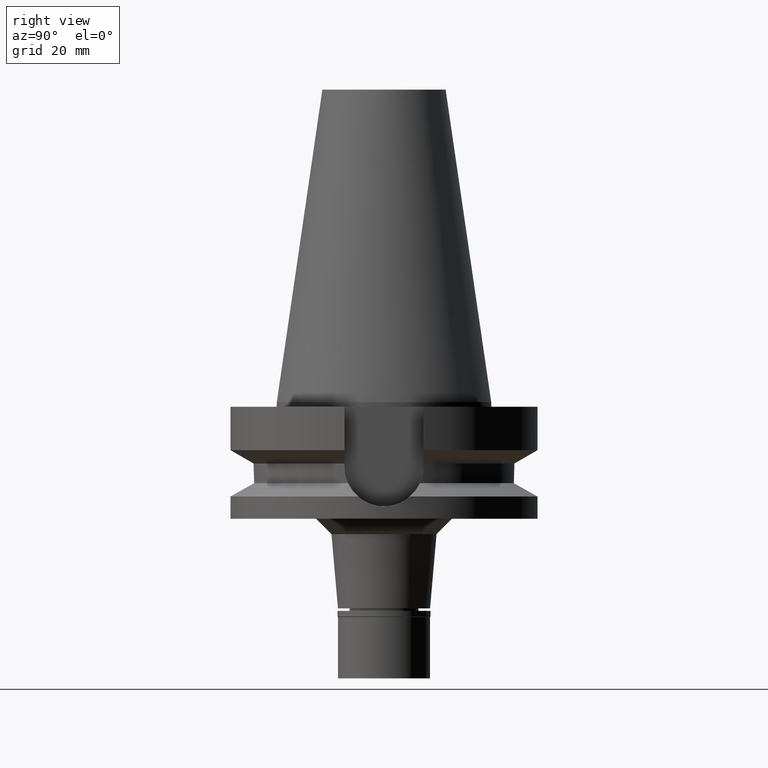
[diagram: clean part render]
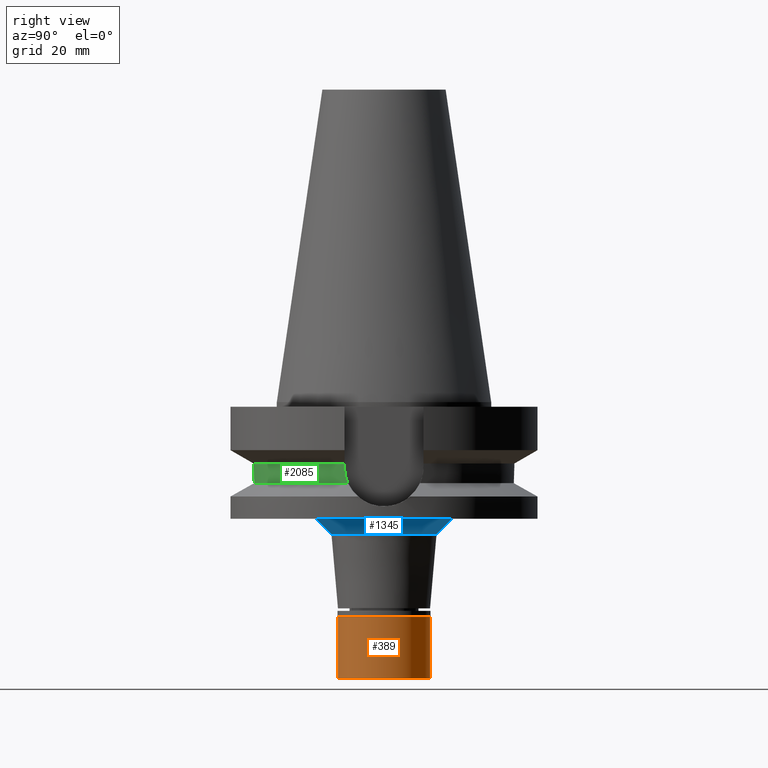
[diagram: same view with three faces highlighted in distinct colors, each labeled with its STEP entity id]
A machine part, right view with three faces highlighted in distinct colors.
Their STEP definitions:

[orange] entity #389 — the highlighted cylindrical surface (partial cylindrical patch) has radius 15 mm, axis along (0, 0, -1).
#73 = EDGE_CURVE ( 'NONE', #1569, #3101, #2287, .T. ) ;
#389 = ADVANCED_FACE ( 'NONE', ( #2528 ), #2089, .T. ) ;
#515 = LINE ( 'NONE', #2743, #1681 ) ;
#583 = CARTESIAN_POINT ( 'NONE',  ( 0.0000000000000000000, 0.0000000000000000000, -22.00000000000000000 ) ) ;
#639 = ORIENTED_EDGE ( 'NONE', *, *, #2424, .T. ) ;
#715 = EDGE_LOOP ( 'NONE', ( #2642, #1300, #639, #1314 ) ) ;
#833 = CARTESIAN_POINT ( 'NONE',  ( 0.0000000000000000000, 15.00000000000000000, -22.00000000000000000 ) ) ;
#1035 = VERTEX_POINT ( 'NONE', #1469 ) ;
#1136 = CARTESIAN_POINT ( 'NONE',  ( 0.0000000000000000000, 15.00000000000000000, -2.000000000000000000 ) ) ;
#1173 = VECTOR ( 'NONE', #2096, 1000.000000000000000 ) ;
#1300 = ORIENTED_EDGE ( 'NONE', *, *, #1790, .T. ) ;
#1314 = ORIENTED_EDGE ( 'NONE', *, *, #73, .F. ) ;
#1365 = AXIS2_PLACEMENT_3D ( 'NONE', #2281, #3049, #3067 ) ;
#1430 = CIRCLE ( 'NONE', #2763, 15.00000000000000000 ) ;
#1469 = CARTESIAN_POINT ( 'NONE',  ( 0.0000000000000000000, -15.00000000000000000, -2.000000000000000000 ) ) ;
#1569 = VERTEX_POINT ( 'NONE', #1136 ) ;
#1665 = CARTESIAN_POINT ( 'NONE',  ( 0.0000000000000000000, 0.0000000000000000000, -2.000000000000000000 ) ) ;
#1681 = VECTOR ( 'NONE', #2765, 1000.000000000000000 ) ;
#1684 = AXIS2_PLACEMENT_3D ( 'NONE', #1665, #3136, #2920 ) ;
#1790 = EDGE_CURVE ( 'NONE', #1035, #2447, #515, .T. ) ;
#2089 = CYLINDRICAL_SURFACE ( 'NONE', #1365, 15.00000000000000000 ) ;
#2096 = DIRECTION ( 'NONE',  ( 0.0000000000000000000, 0.0000000000000000000, -1.000000000000000000 ) ) ;
#2106 = DIRECTION ( 'NONE',  ( 0.0000000000000000000, -1.000000000000000000, 0.0000000000000000000 ) ) ;
#2253 = CIRCLE ( 'NONE', #1684, 15.00000000000000000 ) ;
#2281 = CARTESIAN_POINT ( 'NONE',  ( 0.0000000000000000000, 0.0000000000000000000, 0.0000000000000000000 ) ) ;
#2287 = LINE ( 'NONE', #2824, #1173 ) ;
#2424 = EDGE_CURVE ( 'NONE', #2447, #3101, #1430, .T. ) ;
#2447 = VERTEX_POINT ( 'NONE', #2574 ) ;
#2528 = FACE_OUTER_BOUND ( 'NONE', #715, .T. ) ;
#2574 = CARTESIAN_POINT ( 'NONE',  ( 0.0000000000000000000, -15.00000000000000000, -22.00000000000000000 ) ) ;
#2579 = EDGE_CURVE ( 'NONE', #1569, #1035, #2253, .T. ) ;
#2642 = ORIENTED_EDGE ( 'NONE', *, *, #2579, .T. ) ;
#2743 = CARTESIAN_POINT ( 'NONE',  ( 0.0000000000000000000, -15.00000000000000000, -2.000000000000000000 ) ) ;
#2763 = AXIS2_PLACEMENT_3D ( 'NONE', #583, #2847, #2106 ) ;
#2765 = DIRECTION ( 'NONE',  ( 0.0000000000000000000, 0.0000000000000000000, -1.000000000000000000 ) ) ;
#2824 = CARTESIAN_POINT ( 'NONE',  ( 0.0000000000000000000, 15.00000000000000000, -2.000000000000000000 ) ) ;
#2847 = DIRECTION ( 'NONE',  ( 0.0000000000000000000, 0.0000000000000000000, 1.000000000000000000 ) ) ;
#2920 = DIRECTION ( 'NONE',  ( 0.0000000000000000000, 1.000000000000000000, 0.0000000000000000000 ) ) ;
#3049 = DIRECTION ( 'NONE',  ( 0.0000000000000000000, 0.0000000000000000000, -1.000000000000000000 ) ) ;
#3067 = DIRECTION ( 'NONE',  ( 0.0000000000000000000, -1.000000000000000000, 0.0000000000000000000 ) ) ;
#3101 = VERTEX_POINT ( 'NONE', #833 ) ;
#3136 = DIRECTION ( 'NONE',  ( 0.0000000000000000000, 0.0000000000000000000, -1.000000000000000000 ) ) ;

[blue] entity #1345 — the highlighted conical surface has half-angle 45 deg.
#152 = CARTESIAN_POINT ( 'NONE',  ( 0.0000000000000000000, 22.11722565732999612, -38.00000000000000000 ) ) ;
#180 = VECTOR ( 'NONE', #2556, 1000.000000000000000 ) ;
#227 = CONICAL_SURFACE ( 'NONE', #2354, 19.61722565733000323, 0.7853981633972997312 ) ;
#569 = ORIENTED_EDGE ( 'NONE', *, *, #1148, .T. ) ;
#776 = DIRECTION ( 'NONE',  ( 0.0000000000000000000, 1.000000000000000000, 0.0000000000000000000 ) ) ;
#811 = CIRCLE ( 'NONE', #2959, 17.11722565731999879 ) ;
#837 = CARTESIAN_POINT ( 'NONE',  ( 0.0000000000000000000, 0.0000000000000000000, -38.00000000000000000 ) ) ;
#862 = ORIENTED_EDGE ( 'NONE', *, *, #1436, .F. ) ;
#887 = CARTESIAN_POINT ( 'NONE',  ( 0.0000000000000000000, -22.11722565732999612, -38.00000000000000000 ) ) ;
#1119 = DIRECTION ( 'NONE',  ( 0.0000000000000000000, -0.7071067811867980391, -0.7071067811862969954 ) ) ;
#1148 = EDGE_CURVE ( 'NONE', #1541, #2940, #1519, .T. ) ;
#1241 = DIRECTION ( 'NONE',  ( 0.0000000000000000000, 0.0000000000000000000, 1.000000000000000000 ) ) ;
#1332 = CARTESIAN_POINT ( 'NONE',  ( 0.0000000000000000000, -17.11722565733000323, -43.00000000000000000 ) ) ;
#1345 = ADVANCED_FACE ( 'NONE', ( #2003 ), #227, .T. ) ;
#1370 = LINE ( 'NONE', #2536, #2704 ) ;
#1436 = EDGE_CURVE ( 'NONE', #1541, #2744, #1370, .T. ) ;
#1479 = ORIENTED_EDGE ( 'NONE', *, *, #2540, .T. ) ;
#1519 = CIRCLE ( 'NONE', #2752, 22.11722565732999612 ) ;
#1541 = VERTEX_POINT ( 'NONE', #152 ) ;
#1807 = EDGE_LOOP ( 'NONE', ( #569, #1479, #2688, #862 ) ) ;
#1906 = EDGE_CURVE ( 'NONE', #2063, #2744, #811, .T. ) ;
#2003 = FACE_OUTER_BOUND ( 'NONE', #1807, .T. ) ;
#2063 = VERTEX_POINT ( 'NONE', #1332 ) ;
#2134 = CARTESIAN_POINT ( 'NONE',  ( 0.0000000000000000000, 17.11722565733000323, -43.00000000000000000 ) ) ;
#2302 = DIRECTION ( 'NONE',  ( 0.0000000000000000000, 0.0000000000000000000, 1.000000000000000000 ) ) ;
#2354 = AXIS2_PLACEMENT_3D ( 'NONE', #3182, #1241, #776 ) ;
#2536 = CARTESIAN_POINT ( 'NONE',  ( 0.0000000000000000000, 22.11722565732999612, -38.00000000000000000 ) ) ;
#2540 = EDGE_CURVE ( 'NONE', #2940, #2063, #3031, .T. ) ;
#2545 = CARTESIAN_POINT ( 'NONE',  ( 0.0000000000000000000, 0.0000000000000000000, -43.00000000000000000 ) ) ;
#2556 = DIRECTION ( 'NONE',  ( 0.0000000000000000000, 0.7071067811867980391, -0.7071067811862969954 ) ) ;
#2602 = DIRECTION ( 'NONE',  ( 0.0000000000000000000, 0.0000000000000000000, -1.000000000000000000 ) ) ;
#2688 = ORIENTED_EDGE ( 'NONE', *, *, #1906, .T. ) ;
#2704 = VECTOR ( 'NONE', #1119, 1000.000000000000000 ) ;
#2744 = VERTEX_POINT ( 'NONE', #2134 ) ;
#2752 = AXIS2_PLACEMENT_3D ( 'NONE', #837, #2602, #2830 ) ;
#2830 = DIRECTION ( 'NONE',  ( 0.0000000000000000000, 1.000000000000000000, 0.0000000000000000000 ) ) ;
#2940 = VERTEX_POINT ( 'NONE', #3152 ) ;
#2959 = AXIS2_PLACEMENT_3D ( 'NONE', #2545, #2302, #3084 ) ;
#3031 = LINE ( 'NONE', #887, #180 ) ;
#3084 = DIRECTION ( 'NONE',  ( 0.0000000000000000000, -1.000000000000000000, 0.0000000000000000000 ) ) ;
#3152 = CARTESIAN_POINT ( 'NONE',  ( 0.0000000000000000000, -22.11722565732999612, -38.00000000000000000 ) ) ;
#3182 = CARTESIAN_POINT ( 'NONE',  ( 0.0000000000000000000, 0.0000000000000000000, -40.50000000000000000 ) ) ;

[green] entity #2085 — the highlighted cylindrical surface (partial cylindrical patch) has radius 42.5 mm, axis along (0, 0, -1).
#60 = CARTESIAN_POINT ( 'NONE',  ( -40.51083299927000070, -12.84999648658000027, -19.99284621774999948 ) ) ;
#84 = CARTESIAN_POINT ( 'NONE',  ( -40.85052569294000335, -11.72538061688000077, -26.40718074535000426 ) ) ;
#89 = CARTESIAN_POINT ( 'NONE',  ( 40.58662608485430923, -12.60878154790535000, -23.62927549513685221 ) ) ;
#99 = ORIENTED_EDGE ( 'NONE', *, *, #2180, .T. ) ;
#104 = CARTESIAN_POINT ( 'NONE',  ( 40.59736864107516396, -12.57412283048223856, -23.79851909554432865 ) ) ;
#159 = CARTESIAN_POINT ( 'NONE',  ( 40.51083188481999997, -12.84999999999999964, -21.14999999999999858 ) ) ;
#163 = B_SPLINE_CURVE_WITH_KNOTS ( 'NONE', 3,
 ( #1072, #1547, #2053, #846, #883, #3024, #2551, #89, #1338, #865, #104, #3041, #2805, #597 ),
 .UNSPECIFIED., .F., .F.,
 ( 4, 2, 2, 1, 1, 2, 2, 4 ),
 ( 0.0000000000000000000, 0.2499999999999892308, 0.3749999999999846789, 0.4374999999999822919, 0.4687499999999819589, 0.4843749999999820144, 0.4999999999999820144, 1.000000000000000000 ),
 .UNSPECIFIED. ) ;
#164 = EDGE_CURVE ( 'NONE', #1753, #2955, #2553, .T. ) ;
#179 = CARTESIAN_POINT ( 'NONE',  ( -40.51083188482000708, -12.84999999999998543, -22.03308001794205140 ) ) ;
#208 = CARTESIAN_POINT ( 'NONE',  ( -40.61156896389279325, -12.52821669071489552, -24.00856318994577876 ) ) ;
#249 = DIRECTION ( 'NONE',  ( -9.664687181283911427E-07, -3.046886013494975963E-06, -0.9999999999948913088 ) ) ;
#437 = DIRECTION ( 'NONE',  ( -9.630991678469255700E-07, 3.036263165968078348E-06, 0.9999999999949267249 ) ) ;
#453 = CARTESIAN_POINT ( 'NONE',  ( -40.51083188481999997, -12.84999999999999964, -21.14999999999999858 ) ) ;
#457 = CARTESIAN_POINT ( 'NONE',  ( -40.79434743164174648, -11.92110232362476019, -25.97065181136010992 ) ) ;
#545 = DIRECTION ( 'NONE',  ( 0.0000000000000000000, 0.0000000000000000000, -1.000000000000000000 ) ) ;
#562 = DIRECTION ( 'NONE',  ( 0.9531960443486575674, -0.3023529411764863672, 0.0000000000000000000 ) ) ;
#597 = CARTESIAN_POINT ( 'NONE',  ( 40.85052569294000335, -11.72538061688000077, -26.40718074535000426 ) ) ;
#636 = FACE_OUTER_BOUND ( 'NONE', #1322, .T. ) ;
#759 = CARTESIAN_POINT ( 'NONE',  ( 40.51083300316999924, -12.84999647427999925, -19.99284631207999752 ) ) ;
#814 = CARTESIAN_POINT ( 'NONE',  ( 0.0000000000000000000, 1.006319759053999930E-14, -19.99281925464999787 ) ) ;
#846 = CARTESIAN_POINT ( 'NONE',  ( 40.54025313608426018, -12.75731810731625337, -22.70684014861359756 ) ) ;
#865 = CARTESIAN_POINT ( 'NONE',  ( 40.59544671389546977, -12.58032818125506580, -23.76890350620163517 ) ) ;
#876 = DIRECTION ( 'NONE',  ( 0.0000000000000000000, -1.000000000000000000, 0.0000000000000000000 ) ) ;
#883 = CARTESIAN_POINT ( 'NONE',  ( 40.54944727710435615, -12.72806419699665526, -22.93049076237651107 ) ) ;
#893 = CARTESIAN_POINT ( 'NONE',  ( -40.63719938804874943, -12.44499676301189162, -24.35261212848416079 ) ) ;
#926 = VERTEX_POINT ( 'NONE', #60 ) ;
#971 = CIRCLE ( 'NONE', #3074, 42.50000000000002132 ) ;
#1072 = CARTESIAN_POINT ( 'NONE',  ( 40.51083188481999997, -12.84999999999999964, -21.14999999999999858 ) ) ;
#1122 = CIRCLE ( 'NONE', #1427, 42.50000000000000000 ) ;
#1158 = CYLINDRICAL_SURFACE ( 'NONE', #2250, 42.50000000000000000 ) ;
#1191 = ORIENTED_EDGE ( 'NONE', *, *, #1513, .F. ) ;
#1293 = LINE ( 'NONE', #759, #3170 ) ;
#1322 = EDGE_LOOP ( 'NONE', ( #2537, #99, #1191, #1510, #1694, #1867 ) ) ;
#1338 = CARTESIAN_POINT ( 'NONE',  ( 40.59188398425018818, -12.59182459259147002, -23.71305796896682594 ) ) ;
#1402 = CARTESIAN_POINT ( 'NONE',  ( -40.68244601107633684, -12.29666625011165415, -24.88710380518764254 ) ) ;
#1427 = AXIS2_PLACEMENT_3D ( 'NONE', #1686, #1961, #1921 ) ;
#1434 = CARTESIAN_POINT ( 'NONE',  ( -40.51083188481999997, -12.84999999999999964, -21.14999999999999858 ) ) ;
#1445 = CARTESIAN_POINT ( 'NONE',  ( -40.74530522851353709, -12.08734613714425876, -25.53455770065779618 ) ) ;
#1481 = VERTEX_POINT ( 'NONE', #1853 ) ;
#1510 = ORIENTED_EDGE ( 'NONE', *, *, #2848, .F. ) ;
#1513 = EDGE_CURVE ( 'NONE', #2065, #1625, #163, .T. ) ;
#1547 = CARTESIAN_POINT ( 'NONE',  ( 40.51083188481999997, -12.84999999999999609, -21.59154171183184800 ) ) ;
#1624 = CARTESIAN_POINT ( 'NONE',  ( -40.60092750940732031, -12.56262654778352506, -23.85254111937892674 ) ) ;
#1625 = VERTEX_POINT ( 'NONE', #1735 ) ;
#1669 = CARTESIAN_POINT ( 'NONE',  ( -40.62482961095668088, -12.48525133053583147, -24.19329755006814153 ) ) ;
#1686 = CARTESIAN_POINT ( 'NONE',  ( 0.0000000000000000000, 0.0000000000000000000, -26.40718074535000426 ) ) ;
#1689 = CARTESIAN_POINT ( 'NONE',  ( -40.66327695313978552, -12.35977177933932225, -24.67238797837626052 ) ) ;
#1694 = ORIENTED_EDGE ( 'NONE', *, *, #3058, .T. ) ;
#1724 = CARTESIAN_POINT ( 'NONE',  ( -40.51083188481999997, -12.84999999999999964, -21.14999999999999858 ) ) ;
#1735 = CARTESIAN_POINT ( 'NONE',  ( 40.85052569294000335, -11.72538061688000077, -26.40718074535000426 ) ) ;
#1753 = VERTEX_POINT ( 'NONE', #84 ) ;
#1853 = CARTESIAN_POINT ( 'NONE',  ( 40.51083188481999997, -12.84999999999999964, -19.99281925464999787 ) ) ;
#1867 = ORIENTED_EDGE ( 'NONE', *, *, #2607, .F. ) ;
#1904 = LINE ( 'NONE', #453, #2509 ) ;
#1921 = DIRECTION ( 'NONE',  ( 0.0000000000000000000, -1.000000000000000000, 0.0000000000000000000 ) ) ;
#1961 = DIRECTION ( 'NONE',  ( 0.0000000000000000000, 0.0000000000000000000, 1.000000000000000000 ) ) ;
#2053 = CARTESIAN_POINT ( 'NONE',  ( 40.51818719763606680, -12.82722225432308960, -22.03686830847411215 ) ) ;
#2065 = VERTEX_POINT ( 'NONE', #159 ) ;
#2076 = CARTESIAN_POINT ( 'NONE',  ( 0.0000000000000000000, 2.584678301939999885E-14, 111.0550000000000068 ) ) ;
#2085 = ADVANCED_FACE ( 'NONE', ( #636 ), #1158, .T. ) ;
#2112 = CARTESIAN_POINT ( 'NONE',  ( -40.60613670648186968, -12.54578755583301231, -23.92964714799551729 ) ) ;
#2180 = EDGE_CURVE ( 'NONE', #1753, #1625, #1122, .T. ) ;
#2250 = AXIS2_PLACEMENT_3D ( 'NONE', #2076, #2576, #876 ) ;
#2387 = CARTESIAN_POINT ( 'NONE',  ( -40.85052569294000335, -11.72538061688000077, -26.40718074535000426 ) ) ;
#2509 = VECTOR ( 'NONE', #437, 1000.000000000000114 ) ;
#2537 = ORIENTED_EDGE ( 'NONE', *, *, #164, .F. ) ;
#2551 = CARTESIAN_POINT ( 'NONE',  ( 40.57496101843507574, -12.64633755876298693, -23.43369807928904081 ) ) ;
#2553 = B_SPLINE_CURVE_WITH_KNOTS ( 'NONE', 3,
 ( #2387, #457, #1445, #1402, #1689, #893, #1669, #208, #2112, #2907, #1624, #3088, #179, #1434 ),
 .UNSPECIFIED., .F., .F.,
 ( 4, 2, 2, 1, 1, 2, 2, 4 ),
 ( 0.0000000000000000000, 0.2499999999999908407, 0.3749999999999861222, 0.4374999999999826250, 0.4687499999999819034, 0.4843749999999814593, 0.4999999999999810707, 1.000000000000000000 ),
 .UNSPECIFIED. ) ;
#2576 = DIRECTION ( 'NONE',  ( 0.0000000000000000000, 0.0000000000000000000, -1.000000000000000000 ) ) ;
#2607 = EDGE_CURVE ( 'NONE', #2955, #926, #1904, .T. ) ;
#2805 = CARTESIAN_POINT ( 'NONE',  ( 40.73816957792652005, -12.11682261037108965, -25.53412604446967649 ) ) ;
#2848 = EDGE_CURVE ( 'NONE', #1481, #2065, #1293, .T. ) ;
#2907 = CARTESIAN_POINT ( 'NONE',  ( -40.60257095199571609, -12.55731571366193577, -23.87709474182198122 ) ) ;
#2955 = VERTEX_POINT ( 'NONE', #1724 ) ;
#3024 = CARTESIAN_POINT ( 'NONE',  ( 40.56599673094050473, -12.67509433839779120, -23.26596311455569932 ) ) ;
#3041 = CARTESIAN_POINT ( 'NONE',  ( 40.65435955981745764, -12.39001970624487292, -24.66361747048510011 ) ) ;
#3058 = EDGE_CURVE ( 'NONE', #1481, #926, #971, .T. ) ;
#3074 = AXIS2_PLACEMENT_3D ( 'NONE', #814, #545, #562 ) ;
#3088 = CARTESIAN_POINT ( 'NONE',  ( -40.54025086427707691, -12.75862911298345992, -22.93149008171479508 ) ) ;
#3170 = VECTOR ( 'NONE', #249, 999.9999999999998863 ) ;